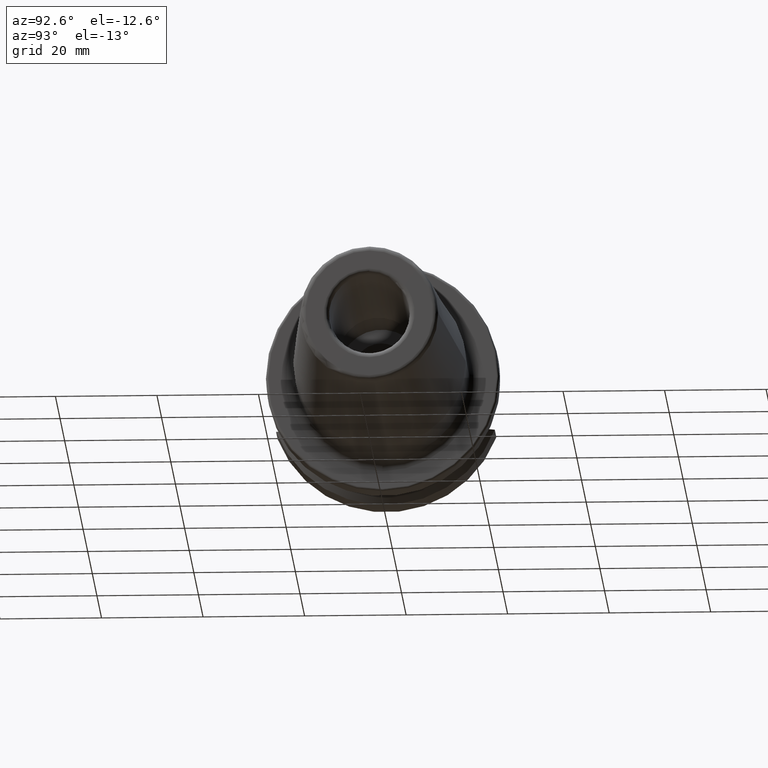
[diagram: clean part render]
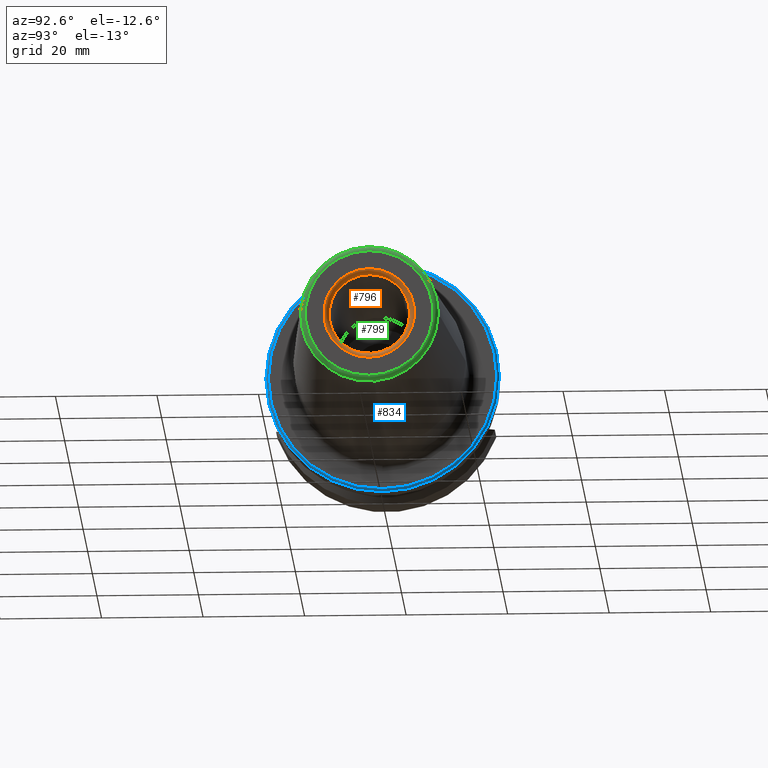
[diagram: same view with three faces highlighted in distinct colors, each labeled with its STEP entity id]
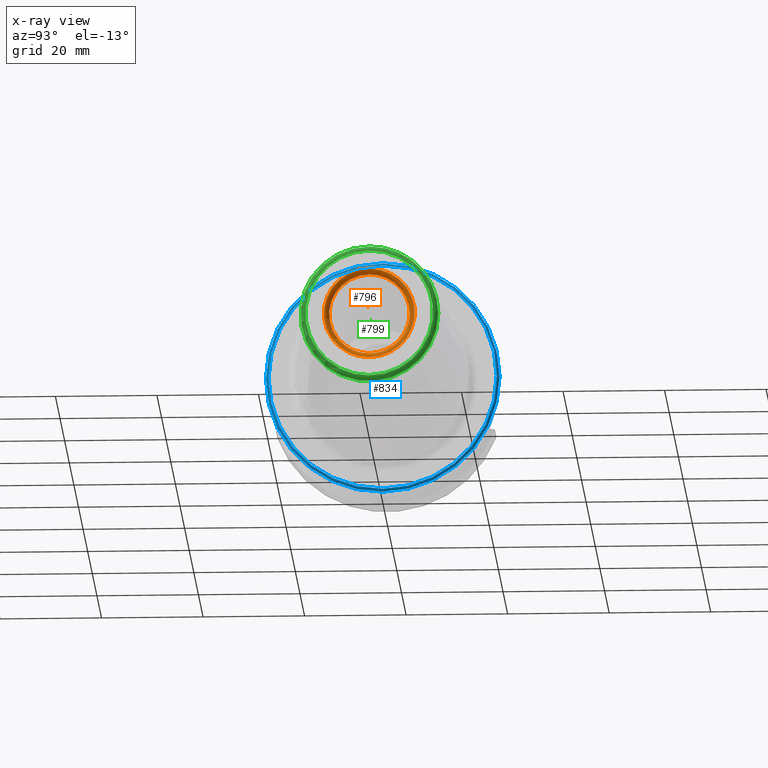
[diagram: x-ray of the same camera — body ghosted, the three highlighted faces saturated]
A machine part, auxiliary view with three faces highlighted in distinct colors.
The next image is the same camera in x-ray (body ghosted, the three faces saturated) — at least one of them is partly hidden behind the body in this view.
Their STEP definitions:

[orange] entity #796 — the highlighted toroidal blend (fillet) surface has major radius 8.9375 mm and minor (blend) radius 1 mm.
#63=TOROIDAL_SURFACE('',#879,8.9375,1.);
#91=FACE_OUTER_BOUND('',#142,.T.);
#142=EDGE_LOOP('',(#557,#558,#559,#560,#561));
#283=CIRCLE('',#880,7.9375);
#284=CIRCLE('',#881,1.);
#285=CIRCLE('',#882,8.9375);
#286=CIRCLE('',#883,7.9375);
#342=VERTEX_POINT('',#1265);
#343=VERTEX_POINT('',#1266);
#344=VERTEX_POINT('',#1268);
#426=EDGE_CURVE('',#342,#343,#283,.T.);
#427=EDGE_CURVE('',#343,#344,#284,.T.);
#428=EDGE_CURVE('',#344,#344,#285,.T.);
#429=EDGE_CURVE('',#343,#342,#286,.T.);
#557=ORIENTED_EDGE('',*,*,#426,.T.);
#558=ORIENTED_EDGE('',*,*,#427,.T.);
#559=ORIENTED_EDGE('',*,*,#428,.T.);
#560=ORIENTED_EDGE('',*,*,#427,.F.);
#561=ORIENTED_EDGE('',*,*,#429,.T.);
#796=ADVANCED_FACE('',(#91),#63,.T.);
#879=AXIS2_PLACEMENT_3D('',#1264,#1009,#1010);
#880=AXIS2_PLACEMENT_3D('',#1267,#1011,#1012);
#881=AXIS2_PLACEMENT_3D('',#1269,#1013,#1014);
#882=AXIS2_PLACEMENT_3D('',#1270,#1015,#1016);
#883=AXIS2_PLACEMENT_3D('',#1271,#1017,#1018);
#1009=DIRECTION('center_axis',(1.,0.,0.));
#1010=DIRECTION('ref_axis',(0.,0.,-1.));
#1011=DIRECTION('center_axis',(-1.,0.,0.));
#1012=DIRECTION('ref_axis',(0.,1.,-6.12323399573676E-17));
#1013=DIRECTION('center_axis',(0.,-1.,-1.22464679914735E-16));
#1014=DIRECTION('ref_axis',(0.,-1.22464679914735E-16,1.));
#1015=DIRECTION('center_axis',(1.,0.,0.));
#1016=DIRECTION('ref_axis',(0.,1.,-6.12323399573676E-17));
#1017=DIRECTION('center_axis',(-1.,0.,0.));
#1018=DIRECTION('ref_axis',(0.,1.,-6.12323399573676E-17));
#1264=CARTESIAN_POINT('Origin',(79.,0.,0.));
#1265=CARTESIAN_POINT('',(79.,7.9375,9.72063396823211E-16));
#1266=CARTESIAN_POINT('',(79.,-9.72063396823211E-16,7.9375));
#1267=CARTESIAN_POINT('Origin',(79.,0.,0.));
#1268=CARTESIAN_POINT('',(80.,-1.09452807673795E-15,8.9375));
#1269=CARTESIAN_POINT('Origin',(79.,-1.09452807673795E-15,8.9375));
#1270=CARTESIAN_POINT('Origin',(80.,0.,0.));
#1271=CARTESIAN_POINT('Origin',(79.,0.,0.));

[blue] entity #834 — the highlighted toroidal blend (fillet) surface has major radius 22.5 mm and minor (blend) radius 0.5 mm.
#69=TOROIDAL_SURFACE('',#959,22.5,0.499999999999998);
#129=FACE_OUTER_BOUND('',#184,.T.);
#184=EDGE_LOOP('',(#755,#756,#757,#758,#759));
#282=CIRCLE('',#878,22.5);
#296=CIRCLE('',#906,23.);
#299=CIRCLE('',#909,23.);
#325=CIRCLE('',#960,0.499999999999998);
#341=VERTEX_POINT('',#1262);
#375=VERTEX_POINT('',#1411);
#376=VERTEX_POINT('',#1412);
#425=EDGE_CURVE('',#341,#341,#282,.T.);
#468=EDGE_CURVE('',#375,#376,#296,.T.);
#473=EDGE_CURVE('',#376,#375,#299,.T.);
#525=EDGE_CURVE('',#341,#376,#325,.T.);
#755=ORIENTED_EDGE('',*,*,#425,.F.);
#756=ORIENTED_EDGE('',*,*,#525,.T.);
#757=ORIENTED_EDGE('',*,*,#473,.T.);
#758=ORIENTED_EDGE('',*,*,#468,.T.);
#759=ORIENTED_EDGE('',*,*,#525,.F.);
#834=ADVANCED_FACE('',(#129),#69,.T.);
#878=AXIS2_PLACEMENT_3D('',#1263,#1007,#1008);
#906=AXIS2_PLACEMENT_3D('',#1413,#1080,#1081);
#909=AXIS2_PLACEMENT_3D('',#1429,#1087,#1088);
#959=AXIS2_PLACEMENT_3D('',#1581,#1203,#1204);
#960=AXIS2_PLACEMENT_3D('',#1582,#1205,#1206);
#1007=DIRECTION('center_axis',(1.,1.62798202122572E-21,0.));
#1008=DIRECTION('ref_axis',(0.,0.,-1.));
#1080=DIRECTION('center_axis',(1.,1.62798202122572E-21,0.));
#1081=DIRECTION('ref_axis',(0.,0.,-1.));
#1087=DIRECTION('center_axis',(1.,1.62798202122572E-21,0.));
#1088=DIRECTION('ref_axis',(0.,0.,-1.));
#1203=DIRECTION('center_axis',(1.,1.62798202122572E-21,0.));
#1204=DIRECTION('ref_axis',(0.,0.,-1.));
#1205=DIRECTION('center_axis',(1.62798202122572E-21,-1.,-1.22464679914735E-16));
#1206=DIRECTION('ref_axis',(0.,-1.22464679914735E-16,1.));
#1262=CARTESIAN_POINT('',(22.,-6.73683912849231E-16,22.5));
#1263=CARTESIAN_POINT('Origin',(22.,2.08177138523231E-15,0.));
#1411=CARTESIAN_POINT('',(21.5,-23.,-2.81668763803891E-15));
#1412=CARTESIAN_POINT('',(21.5,-7.34917066797608E-16,23.));
#1413=CARTESIAN_POINT('Origin',(21.5,2.0817705712413E-15,0.));
#1429=CARTESIAN_POINT('Origin',(21.5,2.0817705712413E-15,0.));
#1581=CARTESIAN_POINT('Origin',(21.5,2.0817705712413E-15,0.));
#1582=CARTESIAN_POINT('Origin',(21.5,-6.73684726840242E-16,22.5));

[green] entity #799 — the highlighted toroidal blend (fillet) surface has major radius 12.5756 mm and minor (blend) radius 1 mm.
#64=TOROIDAL_SURFACE('',#888,12.5756095083418,1.);
#94=FACE_OUTER_BOUND('',#146,.T.);
#146=EDGE_LOOP('',(#569,#570,#571,#572,#573));
#287=CIRCLE('',#885,12.5756095083418);
#289=CIRCLE('',#889,1.);
#290=CIRCLE('',#890,13.5725268420749);
#291=CIRCLE('',#891,13.5725268420749);
#345=VERTEX_POINT('',#1273);
#347=VERTEX_POINT('',#1280);
#348=VERTEX_POINT('',#1282);
#430=EDGE_CURVE('',#345,#345,#287,.T.);
#433=EDGE_CURVE('',#345,#347,#289,.T.);
#434=EDGE_CURVE('',#347,#348,#290,.T.);
#435=EDGE_CURVE('',#348,#347,#291,.T.);
#569=ORIENTED_EDGE('',*,*,#430,.T.);
#570=ORIENTED_EDGE('',*,*,#433,.T.);
#571=ORIENTED_EDGE('',*,*,#434,.T.);
#572=ORIENTED_EDGE('',*,*,#435,.T.);
#573=ORIENTED_EDGE('',*,*,#433,.F.);
#799=ADVANCED_FACE('',(#94),#64,.T.);
#885=AXIS2_PLACEMENT_3D('',#1274,#1021,#1022);
#888=AXIS2_PLACEMENT_3D('',#1279,#1028,#1029);
#889=AXIS2_PLACEMENT_3D('',#1281,#1030,#1031);
#890=AXIS2_PLACEMENT_3D('',#1283,#1032,#1033);
#891=AXIS2_PLACEMENT_3D('',#1284,#1034,#1035);
#1021=DIRECTION('center_axis',(-1.,0.,0.));
#1022=DIRECTION('ref_axis',(0.,1.,-6.12323399573677E-17));
#1028=DIRECTION('center_axis',(1.,0.,0.));
#1029=DIRECTION('ref_axis',(0.,0.,-1.));
#1030=DIRECTION('center_axis',(0.,-1.,-1.22464679914735E-16));
#1031=DIRECTION('ref_axis',(0.,-1.22464679914735E-16,1.));
#1032=DIRECTION('center_axis',(1.,0.,0.));
#1033=DIRECTION('ref_axis',(0.,1.,3.06161699786838E-17));
#1034=DIRECTION('center_axis',(1.,0.,0.));
#1035=DIRECTION('ref_axis',(0.,1.,3.06161699786838E-17));
#1273=CARTESIAN_POINT('',(80.,-1.54006799317178E-15,12.5756095083418));
#1274=CARTESIAN_POINT('Origin',(80.,0.,0.));
#1279=CARTESIAN_POINT('Origin',(79.,0.,0.));
#1280=CARTESIAN_POINT('',(79.0784590957279,-1.66215515534886E-15,13.5725268420749));
#1281=CARTESIAN_POINT('Origin',(79.,-1.54006799317178E-15,12.5756095083418));
#1282=CARTESIAN_POINT('',(79.0784590957279,13.5725268420749,1.66215515534886E-15));
#1283=CARTESIAN_POINT('Origin',(79.0784590957279,0.,1.24661636651164E-15));
#1284=CARTESIAN_POINT('Origin',(79.0784590957279,0.,1.24661636651164E-15));